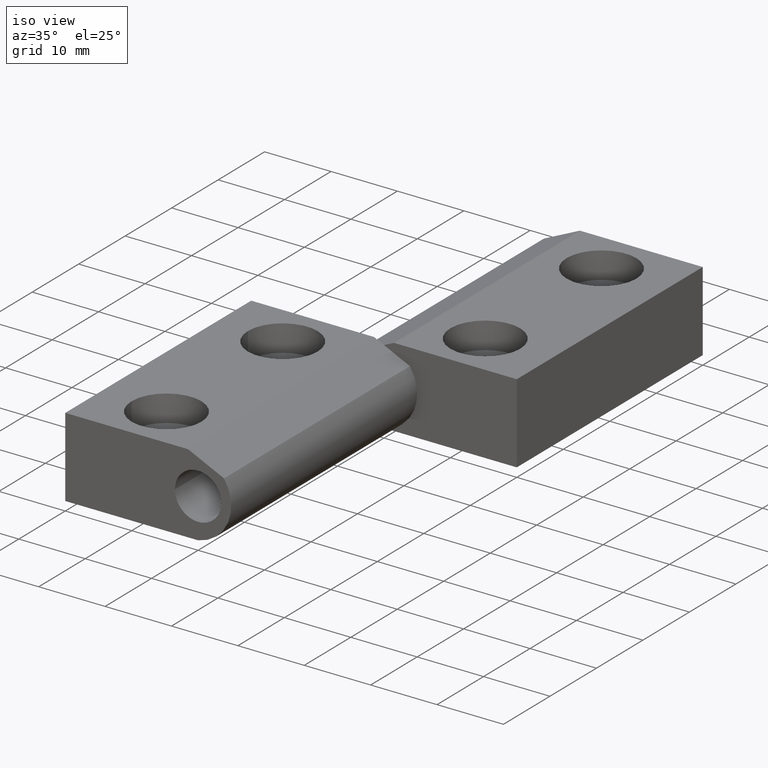
[diagram: clean part render]
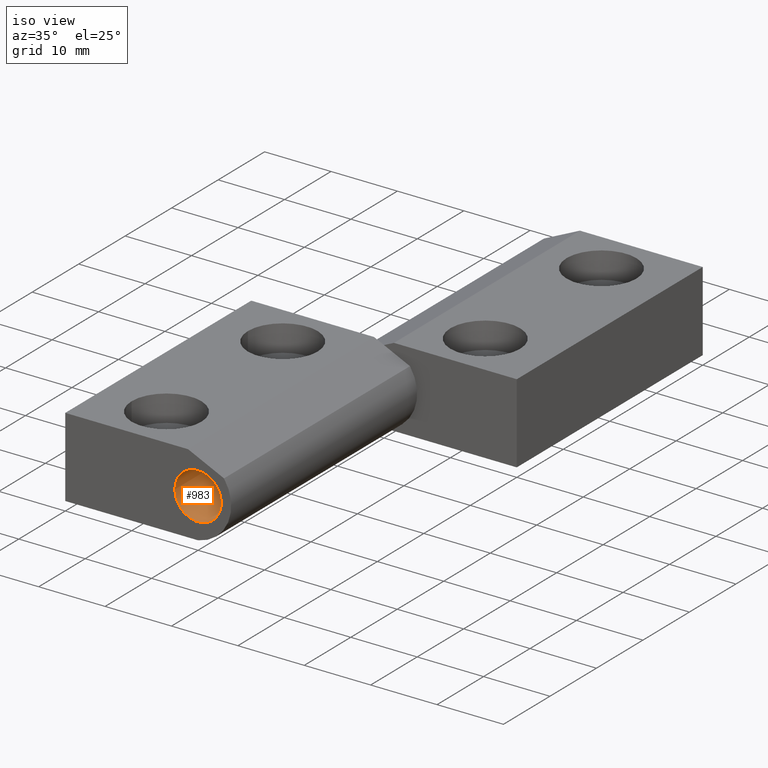
[diagram: same view with one face highlighted and labeled with its STEP entity id]
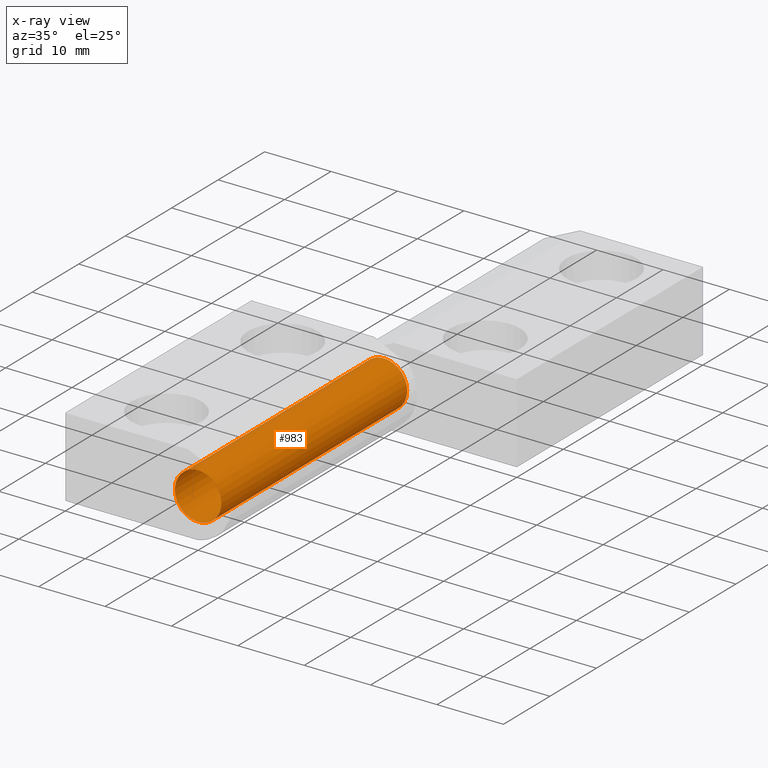
[diagram: x-ray of the same camera — body ghosted, the highlighted face saturated]
A machine part, iso view. The second image highlights one B-rep face of the part: STEP entity #983.
The next image is the same camera in x-ray: the body ghosted, the highlighted face saturated — about 0% of this face is hidden behind the body in this view.
In plain terms, the highlighted cylindrical surface (bore or boss wall) has radius 3.5 mm, axis along (-0, -1, -0).
Its self-contained STEP definition (entity closure, byte-faithful):
#743=CARTESIAN_POINT('',(3.499992999985807,-4.286255E-016,-2.624574E-032));
#744=VERTEX_POINT('',#743);
#745=CARTESIAN_POINT('',(-3.499992999985807,0.0,0.0));
#746=VERTEX_POINT('',#745);
#747=CARTESIAN_POINT('',(0.0,0.0,0.0));
#748=DIRECTION('',(-1.224647E-016,-1.0,-6.123234E-017));
#749=DIRECTION('',(-1.0,1.224647E-016,7.498799E-033));
#750=AXIS2_PLACEMENT_3D('',#747,#748,#749);
#751=CIRCLE('',#750,3.499992999985807);
#752=EDGE_CURVE('',#744,#746,#751,.T.);
#754=CARTESIAN_POINT('',(0.0,0.0,0.0));
#755=DIRECTION('',(-1.224647E-016,-1.0,-6.123234E-017));
#756=DIRECTION('',(-1.0,1.224647E-016,7.498799E-033));
#757=AXIS2_PLACEMENT_3D('',#754,#755,#756);
#758=CIRCLE('',#757,3.499992999985807);
#759=EDGE_CURVE('',#746,#744,#758,.T.);
#776=CARTESIAN_POINT('',(-3.499992999985807,40.0,2.449294E-015));
#777=VERTEX_POINT('',#776);
#778=CARTESIAN_POINT('',(3.499992999985807,40.0,2.449294E-015));
#779=VERTEX_POINT('',#778);
#780=CARTESIAN_POINT('',(0.0,40.0,2.449294E-015));
#781=DIRECTION('',(-1.224647E-016,-1.0,-6.123234E-017));
#782=DIRECTION('',(-1.0,1.224647E-016,7.498799E-033));
#783=AXIS2_PLACEMENT_3D('',#780,#781,#782);
#784=CIRCLE('',#783,3.499992999985807);
#785=EDGE_CURVE('',#777,#779,#784,.T.);
#787=CARTESIAN_POINT('',(0.0,40.0,2.449294E-015));
#788=DIRECTION('',(-1.224647E-016,-1.0,-6.123234E-017));
#789=DIRECTION('',(-1.0,1.224647E-016,7.498799E-033));
#790=AXIS2_PLACEMENT_3D('',#787,#788,#789);
#791=CIRCLE('',#790,3.499992999985807);
#792=EDGE_CURVE('',#779,#777,#791,.T.);
#965=CARTESIAN_POINT('',(0.0,0.0,0.0));
#966=DIRECTION('',(-1.224647E-016,-1.0,-6.123234E-017));
#967=DIRECTION('',(-1.0,1.224647E-016,7.498799E-033));
#968=AXIS2_PLACEMENT_3D('',#965,#966,#967);
#969=CYLINDRICAL_SURFACE('',#968,3.499992999985807);
#970=CARTESIAN_POINT('',(-3.499992999985807,0.0,0.0));
#971=DIRECTION('',(0.0,1.0,0.0));
#972=VECTOR('',#971,40.0);
#973=LINE('',#970,#972);
#974=EDGE_CURVE('',#746,#777,#973,.T.);
#975=ORIENTED_EDGE('',*,*,#974,.T.);
#976=ORIENTED_EDGE('',*,*,#792,.F.);
#977=ORIENTED_EDGE('',*,*,#785,.F.);
#978=ORIENTED_EDGE('',*,*,#974,.F.);
#979=ORIENTED_EDGE('',*,*,#759,.T.);
#980=ORIENTED_EDGE('',*,*,#752,.T.);
#981=EDGE_LOOP('',(#975,#976,#977,#978,#979,#980));
#982=FACE_OUTER_BOUND('',#981,.T.);
#983=ADVANCED_FACE('',(#982),#969,.F.);